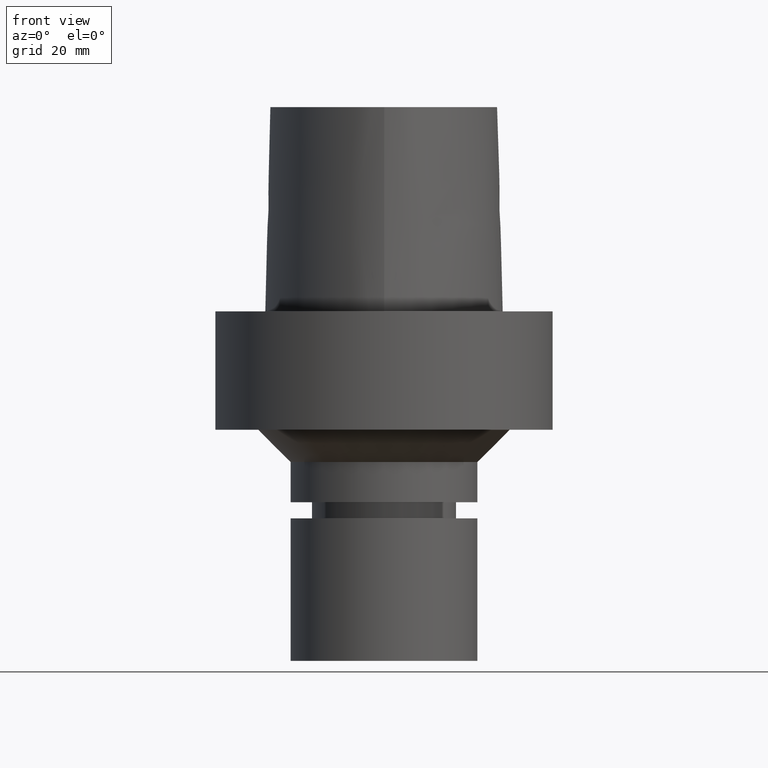
[diagram: clean part render]
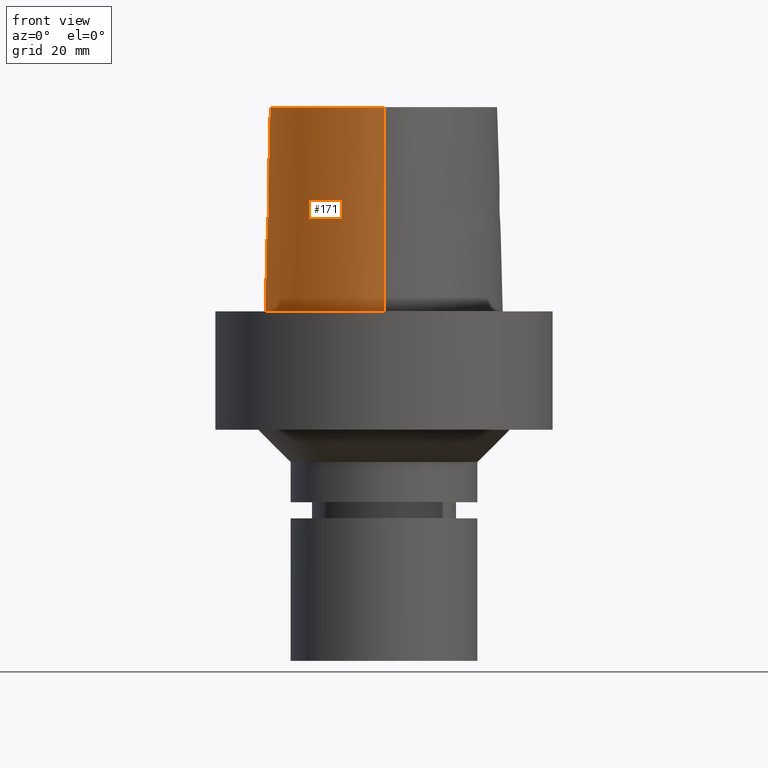
[diagram: same view with one face highlighted and labeled with its STEP entity id]
A machine part, front view. The second image highlights one B-rep face of the part: STEP entity #171.
In plain terms, the highlighted face is a freeform B-spline surface patch.
Its self-contained STEP definition (entity closure, byte-faithful):
#114=EDGE_CURVE('Unnamed[1]',#208,#207,#257,.T.);
#133=EDGE_CURVE('Unnamed[1]',#208,#235,#282,.T.);
#150=EDGE_CURVE('Unnamed[1]',#212,#235,#308,.T.);
#166=EDGE_CURVE('Unnamed[1]',#207,#212,#330,.T.);
#171=ADVANCED_FACE('Unnamed[1]',(#335),#336,.T.);
#207=VERTEX_POINT('',#369);
#208=VERTEX_POINT('',#370);
#212=VERTEX_POINT('',#390);
#235=VERTEX_POINT('',#434);
#257=B_SPLINE_CURVE_WITH_KNOTS('',3,(#462,#463,#464,#465,#466,#467,#468,#469,#470,#471,#472,#473,#474,#475,#476,#477),.UNSPECIFIED.,.F.,.F.,(4,1,1,1,1,1,1,1,1,1,1,1,1,4),(0.0,0.447924670568964,0.9388024242536,1.50591409090711,2.07314340012323,2.72424957442464,3.2253501842849,3.80982102049476,4.34867996267067,4.85900173381144,5.37972031856977,6.03459825488646,6.61113557741484,6.61513393087395),.UNSPECIFIED.);
#282=LINE('',#507,#508);
#308=B_SPLINE_CURVE_WITH_KNOTS('',3,(#541,#542,#543,#544,#545,#546,#547,#548,#549,#550,#551,#552,#553,#554,#555,#556,#557,#558),.UNSPECIFIED.,.F.,.F.,(4,1,1,1,1,1,1,1,1,2,1,1,1,1,4),(-6.6151339308743,-6.20168806019465,-5.78824218951501,-5.37479631883537,-4.96135044815572,-4.13445870679644,-3.30756696543715,-2.89412109475751,-2.48067522407786,-2.06722935339822,-1.65378348271857,-1.24033761203893,-0.826891741359287,-0.413445870679644,0.0),.UNSPECIFIED.);
#330=LINE('',#654,#655);
#335=FACE_OUTER_BOUND('',#663,.T.);
#336=B_SPLINE_SURFACE_WITH_KNOTS('',3,3,((#664,#665,#666,#667),(#668,#669,#670,#671),(#672,#673,#674,#675),(#676,#677,#678,#679),(#680,#681,#682,#683),(#684,#685,#686,#687),(#688,#689,#690,#691),(#692,#693,#694,#695),(#696,#697,#698,#699),(#700,#701,#702,#703),(#704,#705,#706,#707),(#708,#709,#710,#711),(#712,#713,#714,#715),(#716,#717,#718,#719),(#720,#721,#722,#723),(#724,#725,#726,#727),(#728,#729,#730,#731),(#732,#733,#734,#735)),.UNSPECIFIED.,.F.,.F.,.F.,(4,1,1,1,1,1,1,1,1,2,1,1,1,1,4),(4,4),(-6.6151339308743,-6.20168806019465,-5.78824218951501,-5.37479631883537,-4.96135044815572,-4.13445870679644,-3.30756696543715,-2.89412109475751,-2.48067522407786,-2.06722935339822,-1.65378348271857,-1.24033761203893,-0.826891741359287,-0.413445870679644,0.0),(-3.8,0.0),.UNSPECIFIED.);
#369=CARTESIAN_POINT('',(0.038736923393866,-22.5191997536361,38.0));
#370=CARTESIAN_POINT('',(-0.001218547003662,19.7276821925089,38.0));
#390=CARTESIAN_POINT('',(0.04359356758149,-23.4691235068931,7.78075697532443E-032));
#434=CARTESIAN_POINT('',(-0.045171994691285,20.6766009553285,1.6755590516169E-031));
#462=CARTESIAN_POINT('',(-0.001218547003662,19.7276821925089,38.0));
#463=CARTESIAN_POINT('',(-1.49408492138443,19.6585333605309,38.0));
#464=CARTESIAN_POINT('',(-4.62297391420352,19.513604770166,38.0));
#465=CARTESIAN_POINT('',(-9.56160616752212,18.4291575730197,38.0));
#466=CARTESIAN_POINT('',(-14.5427684976927,16.2697452580488,38.0));
#467=CARTESIAN_POINT('',(-19.4315563551602,12.5302108980807,38.0));
#468=CARTESIAN_POINT('',(-21.306358833612,6.76352894547076,38.0));
#469=CARTESIAN_POINT('',(-21.0724946936277,0.957075236984038,38.0));
#470=CARTESIAN_POINT('',(-19.7876470880144,-4.34628503581652,38.0));
#471=CARTESIAN_POINT('',(-17.5396999600095,-9.33314444653089,38.0));
#472=CARTESIAN_POINT('',(-14.645447733857,-13.7185760345629,38.0));
#473=CARTESIAN_POINT('',(-10.7996726536643,-17.856257282137,38.0));
#474=CARTESIAN_POINT('',(-6.00479510196376,-21.2687382067675,38.0));
#475=CARTESIAN_POINT('',(-1.90747171908525,-22.5250621415864,38.0));
#476=CARTESIAN_POINT('',(0.025424107066464,-22.5192678176378,38.0));
#477=CARTESIAN_POINT('',(0.038736923394311,-22.519199753636,38.0));
#507=CARTESIAN_POINT('',(-0.001218547003662,19.7276821925089,38.0));
#508=VECTOR('',#830,38.0118715498723);
#541=CARTESIAN_POINT('',(0.04359356758149,-23.4691235068931,7.78075697532443E-032));
#542=CARTESIAN_POINT('',(-1.4714994713963,-23.4767895315797,2.46519032881566E-032));
#543=CARTESIAN_POINT('',(-4.43923476371401,-22.821149804767,-4.93038065763132E-032));
#544=CARTESIAN_POINT('',(-8.35043230079961,-20.8000751253325,-9.86076131526265E-032));
#545=CARTESIAN_POINT('',(-11.744900222602,-18.1556117874078,-1.97215226305253E-031));
#546=CARTESIAN_POINT('',(-15.6989602501314,-14.0406306929147,-1.97215226305253E-031));
#547=CARTESIAN_POINT('',(-19.5352875070682,-8.00624990770787,1.97215226305253E-031));
#548=CARTESIAN_POINT('',(-21.7205626190491,-1.16081708945282,0.0));
#549=CARTESIAN_POINT('',(-22.2486616783342,4.54965558738736,0.0));
#550=CARTESIAN_POINT('',(-21.6646421256468,9.00229539124618,0.0));
#551=CARTESIAN_POINT('',(-20.3945635471922,11.7780544971003,0.0));
#552=CARTESIAN_POINT('',(-18.5925528034471,14.1980602922581,0.0));
#553=CARTESIAN_POINT('',(-16.3226584122258,16.1777748720707,0.0));
#554=CARTESIAN_POINT('',(-12.5076407874579,18.2524201541303,9.86076131526265E-032));
#555=CARTESIAN_POINT('',(-8.46776192107786,19.679114377952,9.86076131526265E-032));
#556=CARTESIAN_POINT('',(-4.23043497193604,20.487781597334,1.97215226305253E-031));
#557=CARTESIAN_POINT('',(-1.42313094248379,20.6127745766442,1.10933564796705E-031));
#558=CARTESIAN_POINT('',(-0.045171994691285,20.6766009553285,1.6755590516169E-031));
#654=CARTESIAN_POINT('',(0.038736923393866,-22.5191997536361,38.0));
#655=VECTOR('',#880,38.0118715498723);
#663=EDGE_LOOP('',(#883,#884,#885,#886));
#664=CARTESIAN_POINT('',(0.038736923393866,-22.5191997536361,38.0));
#665=CARTESIAN_POINT('',(0.04035580478973,-22.8358410047159,25.3333333333066));
#666=CARTESIAN_POINT('',(0.041974686185626,-23.1524822558133,12.6666666666934));
#667=CARTESIAN_POINT('',(0.04359356758149,-23.4691235068931,7.78075697532443E-032));
#668=CARTESIAN_POINT('',(-1.33786123484754,-22.5261650259856,38.0));
#669=CARTESIAN_POINT('',(-1.38240731367927,-22.8430399310626,25.3333333333066));
#670=CARTESIAN_POINT('',(-1.42695339249092,-23.1599147815484,12.6666666666934));
#671=CARTESIAN_POINT('',(-1.4714994713963,-23.4767895315797,2.46519032881566E-032));
#672=CARTESIAN_POINT('',(-4.08909358431842,-21.9268839879558,38.0));
#673=CARTESIAN_POINT('',(-4.20580731135515,-22.2249725500078,25.3333333333066));
#674=CARTESIAN_POINT('',(-4.32252104640446,-22.5230611651922,12.6666666666934));
#675=CARTESIAN_POINT('',(-4.43923476371401,-22.821149804767,-4.93038065763132E-032));
#676=CARTESIAN_POINT('',(-7.8333083619947,-19.9973514861616,38.0));
#677=CARTESIAN_POINT('',(-8.00568301809614,-20.2649260859405,25.3333333333066));
#678=CARTESIAN_POINT('',(-8.1780576640789,-20.532500564315,12.6666666666934));
#679=CARTESIAN_POINT('',(-8.35043230079961,-20.8000751253325,-9.86076131526265E-032));
#680=CARTESIAN_POINT('',(-11.1035071147626,-17.450554957873,38.0));
#681=CARTESIAN_POINT('',(-11.3173048160562,-17.6855739222454,25.3333333333066));
#682=CARTESIAN_POINT('',(-11.5311025116181,-17.9205928617968,12.6666666666934));
#683=CARTESIAN_POINT('',(-11.744900222602,-18.1556117874078,-1.97215226305253E-031));
#684=CARTESIAN_POINT('',(-14.9379535189057,-13.461132049697,38.0));
#685=CARTESIAN_POINT('',(-15.191622410671,-13.6542981711372,25.3333333333066));
#686=CARTESIAN_POINT('',(-15.4452913389853,-13.8474645327131,12.6666666666934));
#687=CARTESIAN_POINT('',(-15.6989602501314,-14.0406306929147,-1.97215226305253E-031));
#688=CARTESIAN_POINT('',(-18.6681263017223,-7.59391757463204,38.0));
#689=CARTESIAN_POINT('',(-18.9571800800711,-7.73136168081928,25.3333333333066));
#690=CARTESIAN_POINT('',(-19.2462337287194,-7.86880572399774,12.6666666666934));
#691=CARTESIAN_POINT('',(-19.5352875070682,-8.00624990770787,1.97215226305253E-031));
#692=CARTESIAN_POINT('',(-20.7857899858339,-0.952862819790525,38.0));
#693=CARTESIAN_POINT('',(-21.0973808305434,-1.02218087467418,25.3333333333066));
#694=CARTESIAN_POINT('',(-21.408971677436,-1.09149899580772,12.6666666666934));
#695=CARTESIAN_POINT('',(-21.7205626190491,-1.16081708945282,0.0));
#696=CARTESIAN_POINT('',(-21.2911760556836,4.5469215763113,38.0));
#697=CARTESIAN_POINT('',(-21.610337904926,4.54783292082248,25.3333333333066));
#698=CARTESIAN_POINT('',(-21.9294998290918,4.54874426225691,12.6666666666934));
#699=CARTESIAN_POINT('',(-22.2486616783342,4.54965558738736,0.0));
#700=CARTESIAN_POINT('',(-20.7345309521958,8.74909381391006,38.0));
#701=CARTESIAN_POINT('',(-21.0445680426217,8.83349432450556,25.3333333333066));
#702=CARTESIAN_POINT('',(-21.3546050933631,8.91789488065068,12.6666666666934));
#703=CARTESIAN_POINT('',(-21.6646421256468,9.00229539124618,0.0));
#704=CARTESIAN_POINT('',(-19.5531512296439,11.3174844040833,38.0));
#705=CARTESIAN_POINT('',(-19.8336219699984,11.4710077674213,25.3333333333066));
#706=CARTESIAN_POINT('',(-20.1140927680763,11.6245311337623,12.6666666666934));
#707=CARTESIAN_POINT('',(-20.3945635471922,11.7780544971003,0.0));
#708=CARTESIAN_POINT('',(-17.9100913688793,13.524027510437,38.0));
#709=CARTESIAN_POINT('',(-18.1375785458768,13.7487051053655,25.3333333333066));
#710=CARTESIAN_POINT('',(-18.365065665211,13.9733826973296,12.6666666666934));
#711=CARTESIAN_POINT('',(-18.5925528034471,14.1980602922581,0.0));
#712=CARTESIAN_POINT('',(-15.7996349656398,15.3762170634413,38.0));
#713=CARTESIAN_POINT('',(-15.9739761051783,15.6434029846179,25.3333333333066));
#714=CARTESIAN_POINT('',(-16.1483172726872,15.9105889315134,12.6666666666934));
#715=CARTESIAN_POINT('',(-16.3226584122258,16.1777748720707,0.0));
#716=CARTESIAN_POINT('',(-12.1175640002064,17.3825162484012,38.0));
#717=CARTESIAN_POINT('',(-12.2475895903055,17.6724842099619,25.3333333333066));
#718=CARTESIAN_POINT('',(-12.3776152070492,17.9624521925696,12.6666666666934));
#719=CARTESIAN_POINT('',(-12.5076407874579,18.2524201541303,9.86076131526265E-032));
#720=CARTESIAN_POINT('',(-8.21761151654222,18.7588585989994,38.0));
#721=CARTESIAN_POINT('',(-8.30099497910627,19.0656105427881,25.3333333333066));
#722=CARTESIAN_POINT('',(-8.38437843913309,19.3723624535439,12.6666666666934));
#723=CARTESIAN_POINT('',(-8.46776192107786,19.679114377952,9.86076131526265E-032));
#724=CARTESIAN_POINT('',(-4.13466093881225,19.5396850837055,38.0));
#725=CARTESIAN_POINT('',(-4.16658562115465,19.8557172636973,25.3333333333066));
#726=CARTESIAN_POINT('',(-4.19851029939059,20.1717494367229,12.6666666666934));
#727=CARTESIAN_POINT('',(-4.23043497193604,20.487781597334,1.97215226305253E-031));
#728=CARTESIAN_POINT('',(-1.37917220403684,19.6638560588908,38.0));
#729=CARTESIAN_POINT('',(-1.39382511685176,19.98016223565,25.3333333333066));
#730=CARTESIAN_POINT('',(-1.40847802945569,20.296468399885,12.6666666666934));
#731=CARTESIAN_POINT('',(-1.42313094248379,20.6127745766442,1.10933564796705E-031));
#732=CARTESIAN_POINT('',(-0.001218547003662,19.7276821925089,38.0));
#733=CARTESIAN_POINT('',(-0.015869696232855,20.043988446791,25.3333333333066));
#734=CARTESIAN_POINT('',(-0.030520845462092,20.3602947010464,12.6666666666934));
#735=CARTESIAN_POINT('',(-0.045171994691285,20.6766009553285,1.6755590516169E-031));
#830=DIRECTION('',(-0.001156308434589,0.02496374748543,-0.999687688361864));
#880=DIRECTION('',(0.000127766510556,-0.024990186342461,-0.999687688361864));
#883=ORIENTED_EDGE('',*,*,#150,.F.);
#884=ORIENTED_EDGE('',*,*,#166,.F.);
#885=ORIENTED_EDGE('',*,*,#114,.F.);
#886=ORIENTED_EDGE('',*,*,#133,.T.);